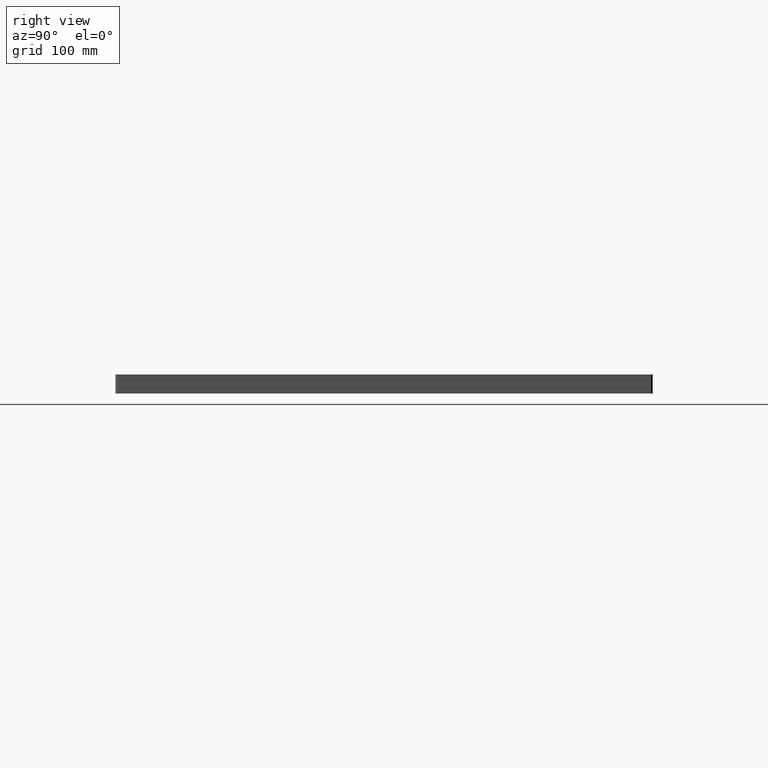
[diagram: clean part render]
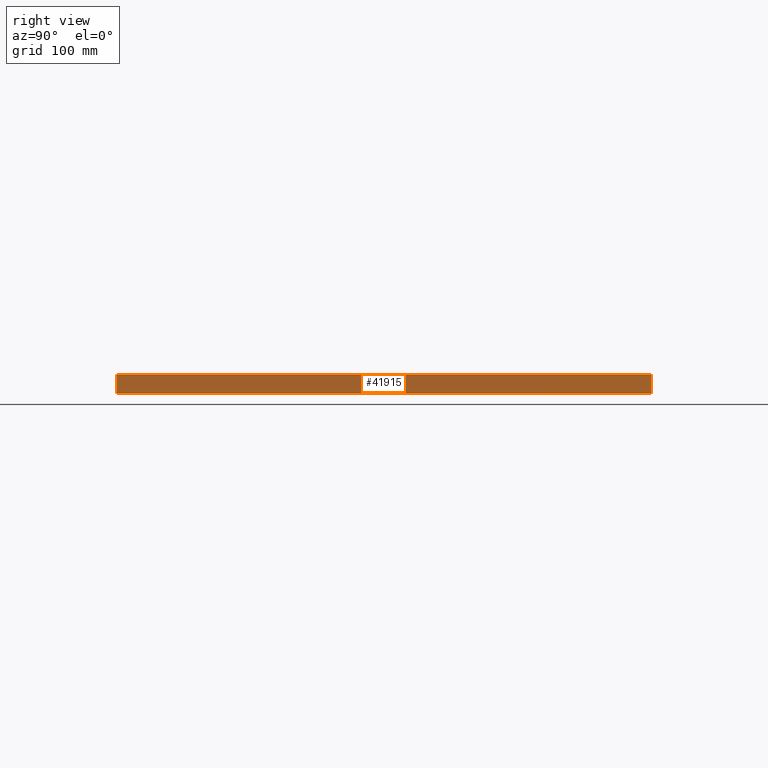
[diagram: same view with one face highlighted and labeled with its STEP entity id]
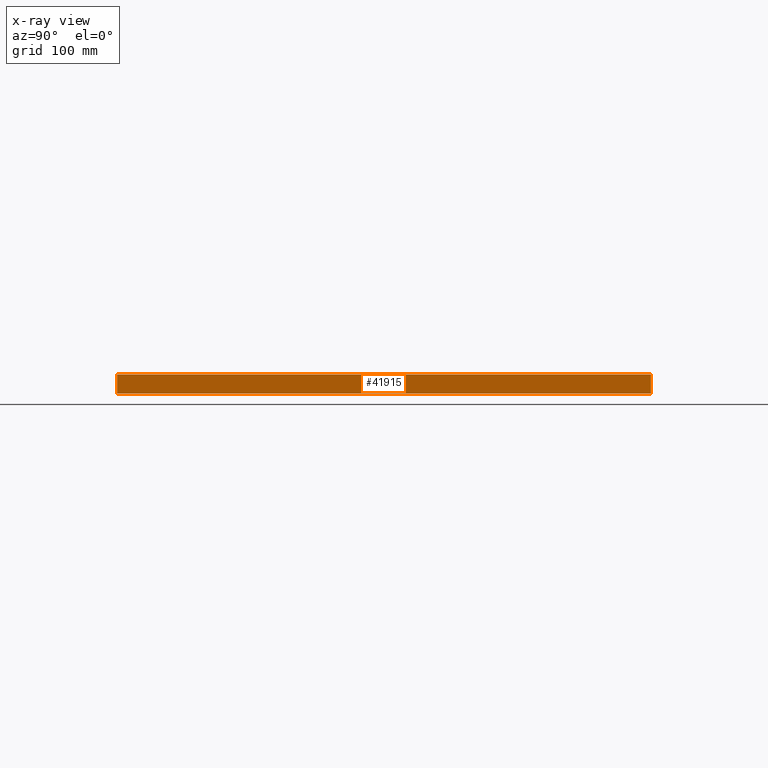
[diagram: x-ray of the same camera — body ghosted, the highlighted face saturated]
A machine part, right view. The second image highlights one B-rep face of the part: STEP entity #41915.
The next image is the same camera in x-ray: the body ghosted, the highlighted face saturated — about 0% of this face is hidden behind the body in this view.
In plain terms, the highlighted planar face has unit normal (1, 0, 0).
Its self-contained STEP definition (entity closure, byte-faithful):
#1918=LINE('',#75870,#3643);
#1987=LINE('',#76871,#3712);
#1998=LINE('',#77603,#3723);
#2004=LINE('',#77614,#3729);
#3643=VECTOR('',#55462,0.393700787401575);
#3712=VECTOR('',#56533,0.393700787401575);
#3723=VECTOR('',#57270,0.393700787401575);
#3729=VECTOR('',#57286,0.393700787401575);
#9813=FACE_OUTER_BOUND('',#14288,.T.);
#14288=EDGE_LOOP('',(#36058,#36059,#36060,#36061));
#21184=VERTEX_POINT('',#75868);
#21185=VERTEX_POINT('',#75869);
#21615=VERTEX_POINT('',#76868);
#21616=VERTEX_POINT('',#76870);
#26035=EDGE_CURVE('',#21184,#21185,#1918,.T.);
#26534=EDGE_CURVE('',#21616,#21615,#1987,.T.);
#26901=EDGE_CURVE('',#21616,#21184,#1998,.T.);
#26907=EDGE_CURVE('',#21185,#21615,#2004,.T.);
#36058=ORIENTED_EDGE('',*,*,#26901,.F.);
#36059=ORIENTED_EDGE('',*,*,#26534,.T.);
#36060=ORIENTED_EDGE('',*,*,#26907,.F.);
#36061=ORIENTED_EDGE('',*,*,#26035,.F.);
#40000=PLANE('',#46818);
#41915=ADVANCED_FACE('',(#9813),#40000,.T.);
#46818=AXIS2_PLACEMENT_3D('',#77615,#57287,#57288);
#55462=DIRECTION('',(0.,-1.,0.));
#56533=DIRECTION('',(0.,-1.,0.));
#57270=DIRECTION('',(0.,0.,1.));
#57286=DIRECTION('',(0.,0.,-1.));
#57287=DIRECTION('center_axis',(-1.,0.,0.));
#57288=DIRECTION('ref_axis',(0.,-1.,0.));
#75868=CARTESIAN_POINT('',(-12.,12.9167157287525,0.92));
#75869=CARTESIAN_POINT('',(-12.,-12.9167157287525,0.92));
#75870=CARTESIAN_POINT('',(-12.,13.,0.92));
#76868=CARTESIAN_POINT('',(-12.,-12.9167157287525,0.));
#76870=CARTESIAN_POINT('',(-12.,12.9167157287525,0.));
#76871=CARTESIAN_POINT('',(-12.,13.,0.));
#77603=CARTESIAN_POINT('',(-12.,12.9167157287525,0.));
#77614=CARTESIAN_POINT('',(-12.,-12.9167157287525,0.));
#77615=CARTESIAN_POINT('Origin',(-12.,13.,0.));